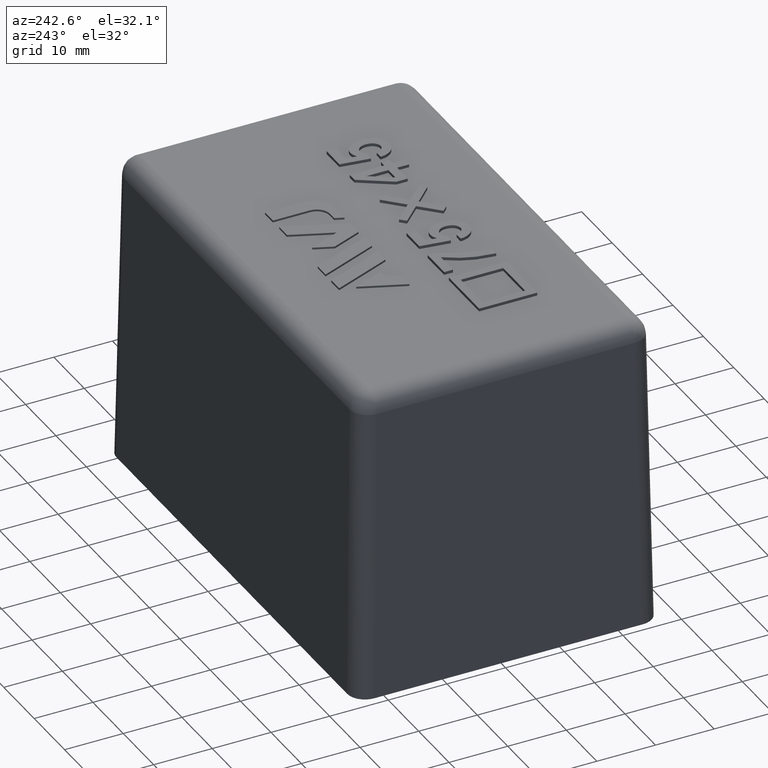
[diagram: clean part render]
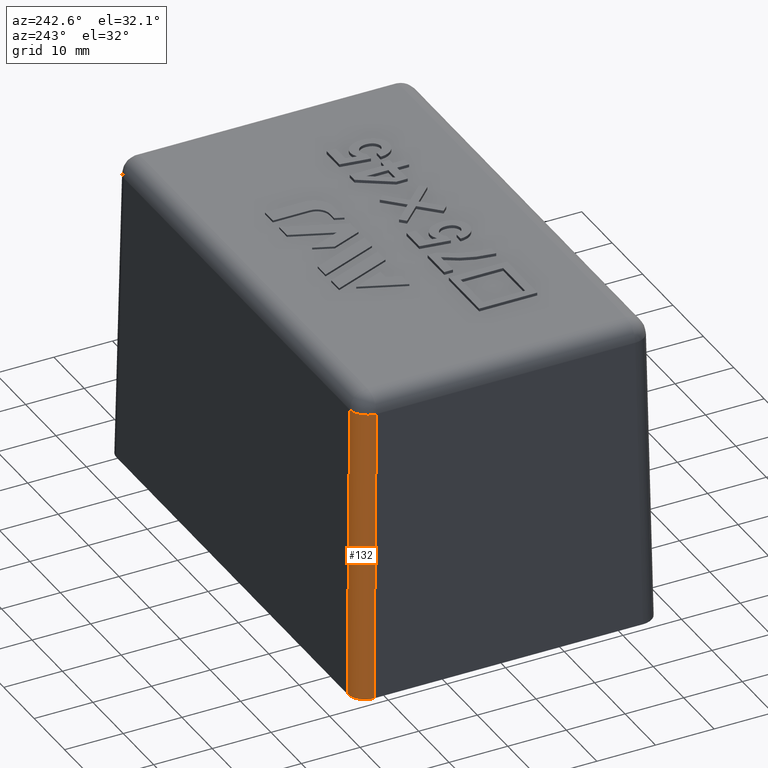
[diagram: same view with one face highlighted and labeled with its STEP entity id]
A machine part, auxiliary view. The second image highlights one B-rep face of the part: STEP entity #132.
In plain terms, the highlighted cylindrical surface (edge-blend (fillet) strip) has radius 3 mm, axis along (0.0174, -0.0174, 0.9997).
Its self-contained STEP definition (entity closure, byte-faithful):
#132 = ADVANCED_FACE( '', ( #332 ), #333, .T. );
#332 = FACE_OUTER_BOUND( '', #608, .T. );
#333 = CYLINDRICAL_SURFACE( '', #609, 3.00000000000000 );
#608 = EDGE_LOOP( '', ( #1290, #1291, #1292, #1293 ) );
#609 = AXIS2_PLACEMENT_3D( '', #1294, #1295, #1296 );
#1290 = ORIENTED_EDGE( '', *, *, #2050, .F. );
#1291 = ORIENTED_EDGE( '', *, *, #1931, .F. );
#1292 = ORIENTED_EDGE( '', *, *, #2046, .F. );
#1293 = ORIENTED_EDGE( '', *, *, #2051, .F. );
#1294 = CARTESIAN_POINT( '', ( -37.4858410756062, 22.4858410756062, 25.7849836318806 ) );
#1295 = DIRECTION( '', ( 0.0174497491606827, -0.0174497491606827, 0.999695459881888 ) );
#1296 = DIRECTION( '', ( -0.999847695156391, 0.000000000000000, 0.0174524064372835 ) );
#1931 = EDGE_CURVE( '', #2342, #2337, #2344, .F. );
#2046 = EDGE_CURVE( '', #2521, #2342, #2525, .T. );
#2050 = EDGE_CURVE( '', #2337, #2530, #2531, .F. );
#2051 = EDGE_CURVE( '', #2530, #2521, #2532, .T. );
#2337 = VERTEX_POINT( '', #3052 );
#2342 = VERTEX_POINT( '', #3059 );
#2344 = LINE( '', #3062, #3063 );
#2521 = VERTEX_POINT( '', #3439 );
#2525 = CIRCLE( '', #3445, 3.00000000000000 );
#2530 = VERTEX_POINT( '', #3450 );
#2531 = ELLIPSE( '', #3451, 3.00091389867315, 3.00000000000000 );
#2532 = LINE( '', #3452, #3453 );
#3052 = CARTESIAN_POINT( '', ( -40.9363766232054, 22.9368335377363, -6.93889390390723E-015 ) );
#3059 = CARTESIAN_POINT( '', ( -40.0627094781320, 22.0631663926628, 50.0523572193119 ) );
#3062 = CARTESIAN_POINT( '', ( -40.4853841610754, 22.4858410756062, 25.8373408511924 ) );
#3063 = VECTOR( '', #3783, 1000.00000000000 );
#3439 = CARTESIAN_POINT( '', ( -37.0631663926628, 25.0627094781320, 50.0523572193119 ) );
#3445 = AXIS2_PLACEMENT_3D( '', #3845, #3846, #3847 );
#3450 = CARTESIAN_POINT( '', ( -37.9368335377363, 25.9363766232054, -6.93889390390723E-015 ) );
#3451 = AXIS2_PLACEMENT_3D( '', #3857, #3858, #3859 );
#3452 = CARTESIAN_POINT( '', ( -37.5013702566405, 25.5009133421097, 24.9476746655798 ) );
#3453 = VECTOR( '', #3860, 1000.00000000000 );
#3783 = DIRECTION( '', ( 0.0174497491606827, -0.0174497491606827, 0.999695459881887 ) );
#3845 = CARTESIAN_POINT( '', ( -37.0631663926628, 22.0631663926628, 50.0000000000000 ) );
#3846 = DIRECTION( '', ( 0.0174497491606827, -0.0174497491606827, 0.999695459881888 ) );
#3847 = DIRECTION( '', ( 0.000000000000000, -0.999847695156391, -0.0174524064372836 ) );
#3857 = CARTESIAN_POINT( '', ( -37.9359196390737, 22.9359196390737, -6.93889390390723E-015 ) );
#3858 = DIRECTION( '', ( 0.000000000000000, 0.000000000000000, 1.00000000000000 ) );
#3859 = DIRECTION( '', ( -0.707106781186548, 0.707106781186548, 0.000000000000000 ) );
#3860 = DIRECTION( '', ( 0.0174497491606827, -0.0174497491606827, 0.999695459881887 ) );